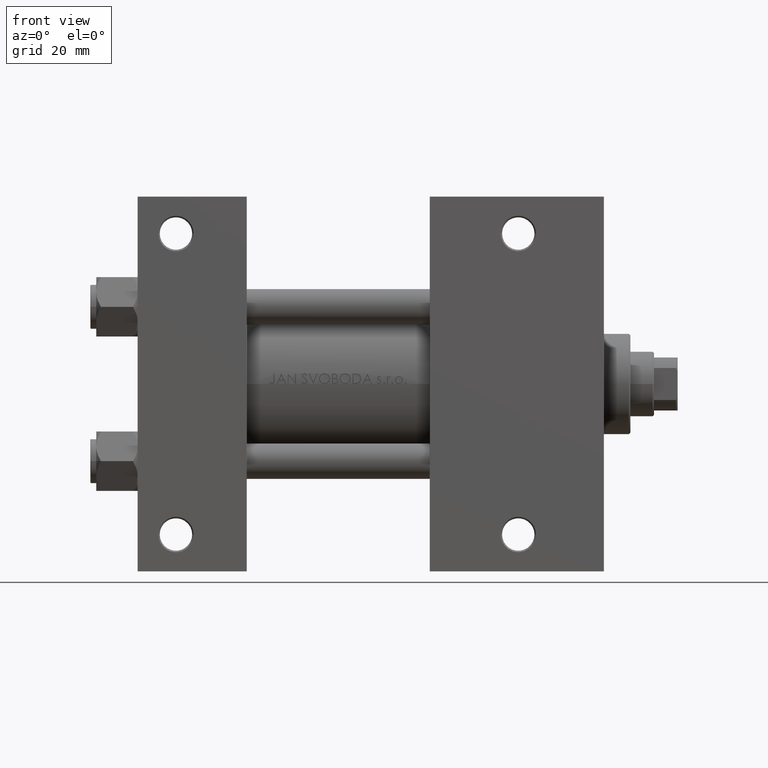
[diagram: clean part render]
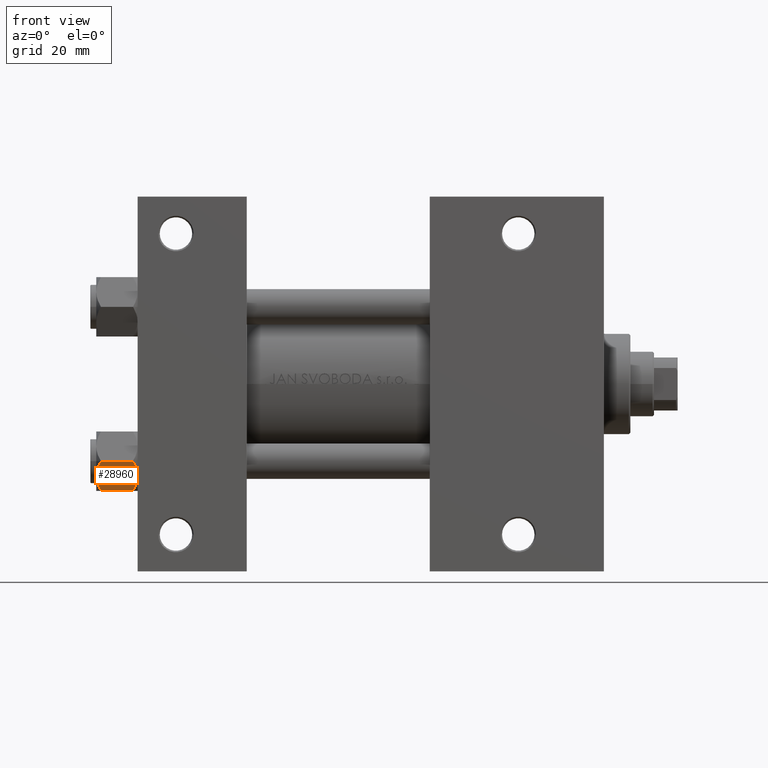
[diagram: same view with one face highlighted and labeled with its STEP entity id]
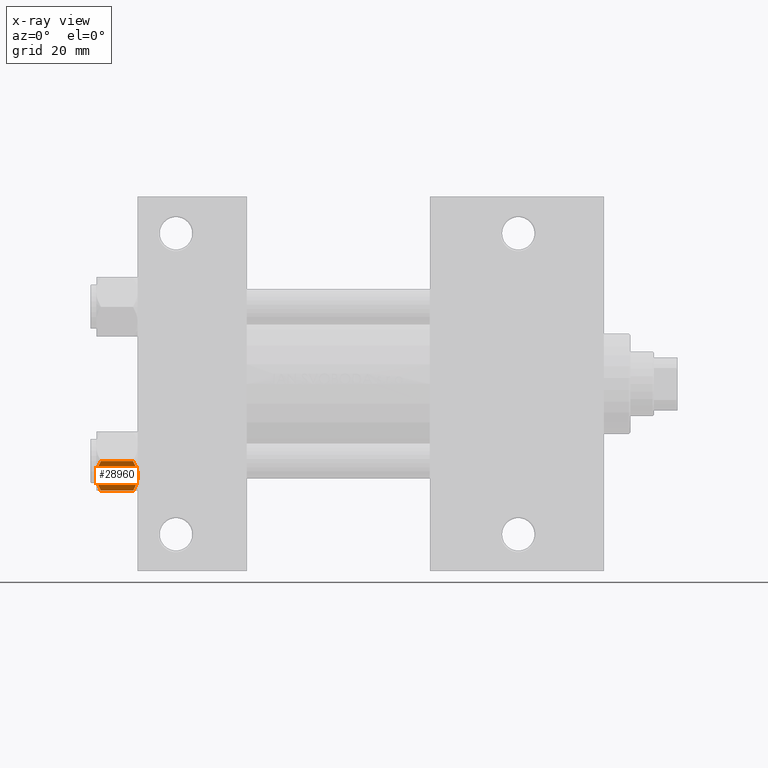
[diagram: x-ray of the same camera — body ghosted, the highlighted face saturated]
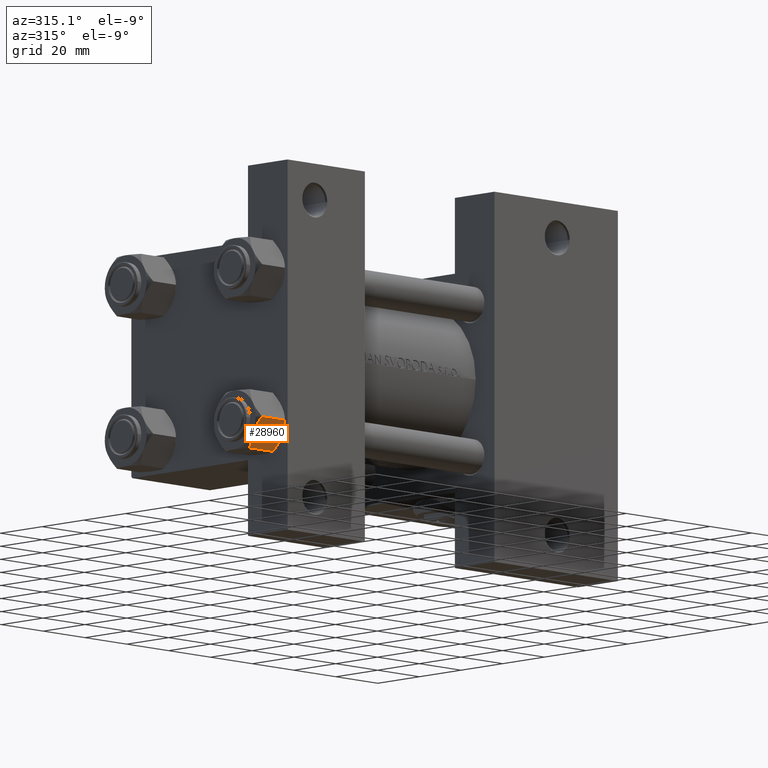
[diagram: same view with one face highlighted and labeled with its STEP entity id]
A machine part, front view. The second image highlights one B-rep face of the part: STEP entity #28960.
The next image is the same camera in x-ray: the body ghosted, the highlighted face saturated — about 0% of this face is hidden behind the body in this view.
A second angle (auxiliary view) of the same face is appended — the face is thin or edge-on in the first view.
In plain terms, the highlighted planar face has unit normal (0, 0.866, 0.5).
Its self-contained STEP definition (entity closure, byte-faithful):
#776 = LINE ( 'NONE', #24192, #40742 ) ;
#1317 = CARTESIAN_POINT ( 'NONE',  ( 8.715000000000001634, -5.031607595987590997, 0.000000000000000000 ) ) ;
#1493 = CARTESIAN_POINT ( 'NONE',  ( 5.810000000000000497, -10.06321519197517667, -12.44321519197518633 ) ) ;
#6033 = CARTESIAN_POINT ( 'NONE',  ( 5.810000000000000497, -10.06321519197517667, -1.556784808024813671 ) ) ;
#6843 = VERTEX_POINT ( 'NONE', #1317 ) ;
#7107 = CARTESIAN_POINT ( 'NONE',  ( 10.69859855102500745, -1.595914123792264050, -13.28585617404753094 ) ) ;
#7986 = FACE_OUTER_BOUND ( 'NONE', #9285, .T. ) ;
#8673 = CARTESIAN_POINT ( 'NONE',  ( 11.62000000000000099, -1.813166800014576593E-15, -14.00000000000000000 ) ) ;
#8681 = B_SPLINE_CURVE_WITH_KNOTS ( 'NONE', 3,
 ( #32995, #25021, #28761, #14055, #40232, #22017 ),
 .UNSPECIFIED., .F., .F.,
 ( 4, 2, 4 ),
 ( 0.006022845781655588975, 0.009013049135303635023, 0.01200325248895167674 ),
 .UNSPECIFIED. ) ;
#9285 = EDGE_LOOP ( 'NONE', ( #15771, #34883, #47062, #26421, #46447, #48904 ) ) ;
#9957 = CARTESIAN_POINT ( 'NONE',  ( 11.62000000000000099, -1.607967606633101042E-15, -1.556784808024815669 ) ) ;
#10354 = CARTESIAN_POINT ( 'NONE',  ( 9.974696630283194310, -2.849749030213795997, -13.69973261901326289 ) ) ;
#11463 = EDGE_CURVE ( 'NONE', #6843, #45953, #26911, .T. ) ;
#11969 = DIRECTION ( 'NONE',  ( -0.8660254037844385966, 0.5000000000000002220, 0.000000000000000000 ) ) ;
#13691 = CARTESIAN_POINT ( 'NONE',  ( 9.220295946303432189, -4.156409344131454020, 1.753358200816401307E-15 ) ) ;
#13768 = CARTESIAN_POINT ( 'NONE',  ( 8.715000000000001634, -5.031607595987590997, 0.000000000000000000 ) ) ;
#14055 = CARTESIAN_POINT ( 'NONE',  ( 6.733375043383497349, -8.463882702393844326, -13.28854452935655139 ) ) ;
#15212 = VERTEX_POINT ( 'NONE', #42254 ) ;
#15771 = ORIENTED_EDGE ( 'NONE', *, *, #21811, .F. ) ;
#16353 = CARTESIAN_POINT ( 'NONE',  ( 11.16445427487471775, -0.7890283410877989567, -12.89876091710046424 ) ) ;
#17431 = CARTESIAN_POINT ( 'NONE',  ( 10.69662495661650503, -1.599332489581334560, -0.7114554706434500497 ) ) ;
#17748 = CARTESIAN_POINT ( 'NONE',  ( 7.455303369716810735, -7.213466161761385109, -0.3002673809867383303 ) ) ;
#17770 = AXIS2_PLACEMENT_3D ( 'NONE', #31156, #11969, #42621 ) ;
#17981 = EDGE_CURVE ( 'NONE', #23201, #29117, #8681, .T. ) ;
#18073 = CARTESIAN_POINT ( 'NONE',  ( 8.715000000000001634, -5.031607595987590997, -14.00000000000000000 ) ) ;
#19676 = PLANE ( 'NONE',  #17770 ) ;
#21699 = VECTOR ( 'NONE', #24115, 1000.000000000000000 ) ;
#21811 = EDGE_CURVE ( 'NONE', #30675, #23201, #34595, .T. ) ;
#22017 = CARTESIAN_POINT ( 'NONE',  ( 5.810000000000000497, -10.06321519197517667, -12.44321519197518633 ) ) ;
#23201 = VERTEX_POINT ( 'NONE', #29247 ) ;
#24115 = DIRECTION ( 'NONE',  ( -0.000000000000000000, -0.000000000000000000, 1.000000000000000000 ) ) ;
#24192 = CARTESIAN_POINT ( 'NONE',  ( 5.810000000000000497, -10.06321519197517667, -14.00000000000000000 ) ) ;
#24973 = CARTESIAN_POINT ( 'NONE',  ( 7.700834831386345058, -6.788193195293096949, -0.1903979688073415555 ) ) ;
#25021 = CARTESIAN_POINT ( 'NONE',  ( 8.209704053696569304, -5.906805847843729751, -14.00000000000000711 ) ) ;
#25219 = CARTESIAN_POINT ( 'NONE',  ( 6.265545725125283738, -9.274186850887380373, -1.101239082899531319 ) ) ;
#25544 = CARTESIAN_POINT ( 'NONE',  ( 9.227666995912104042, -4.143642311704127223, -13.96005881939309212 ) ) ;
#25707 = CARTESIAN_POINT ( 'NONE',  ( 6.731401448974986934, -8.467301068182914392, -0.7141438259524658383 ) ) ;
#26421 = ORIENTED_EDGE ( 'NONE', *, *, #41943, .F. ) ;
#26641 = EDGE_CURVE ( 'NONE', #29117, #15212, #776, .T. ) ;
#26911 = B_SPLINE_CURVE_WITH_KNOTS ( 'NONE', 3,
 ( #45247, #13691, #34036, #17431, #41767, #9957 ),
 .UNSPECIFIED., .F., .F.,
 ( 4, 2, 4 ),
 ( 0.006022845781655586372, 0.009013049135303633289, 0.01200325248895168020 ),
 .UNSPECIFIED. ) ;
#26928 = CARTESIAN_POINT ( 'NONE',  ( 11.62000000000000099, -1.607967606633101042E-15, -1.556784808024815669 ) ) ;
#28302 = CARTESIAN_POINT ( 'NONE',  ( 11.62000000000000099, -1.795242522838921761E-15, -12.44321519197518455 ) ) ;
#28761 = CARTESIAN_POINT ( 'NONE',  ( 7.713000053756304375, -6.767122412062953174, -13.84547602999601601 ) ) ;
#28960 = ADVANCED_FACE ( 'NONE', ( #7986 ), #19676, .F. ) ;
#29117 = VERTEX_POINT ( 'NONE', #1493 ) ;
#29247 = CARTESIAN_POINT ( 'NONE',  ( 8.715000000000001634, -5.031607595987590997, -14.00000000000000000 ) ) ;
#30675 = VERTEX_POINT ( 'NONE', #28302 ) ;
#31156 = CARTESIAN_POINT ( 'NONE',  ( 11.62000000000000099, -1.813166800014576593E-15, -14.00000000000000000 ) ) ;
#32699 = CARTESIAN_POINT ( 'NONE',  ( 8.460569896449618099, -5.472293462311865753, 1.694065894508600678E-15 ) ) ;
#32995 = CARTESIAN_POINT ( 'NONE',  ( 8.715000000000001634, -5.031607595987590997, -14.00000000000000000 ) ) ;
#34036 = CARTESIAN_POINT ( 'NONE',  ( 9.716999946243698005, -3.296092779912227932, -0.1545239700039841013 ) ) ;
#34595 = B_SPLINE_CURVE_WITH_KNOTS ( 'NONE', 3,
 ( #36527, #16353, #7107, #10354, #48956, #25544, #48220, #18073 ),
 .UNSPECIFIED., .F., .F.,
 ( 4, 2, 2, 4 ),
 ( 2.544312114905217906E-07, 0.003011550106433539490, 0.004517197944044564449, 0.006022845781655588975 ),
 .UNSPECIFIED. ) ;
#34883 = ORIENTED_EDGE ( 'NONE', *, *, #42276, .T. ) ;
#36527 = CARTESIAN_POINT ( 'NONE',  ( 11.62000000000000099, -1.795242522838921761E-15, -12.44321519197518455 ) ) ;
#37467 = B_SPLINE_CURVE_WITH_KNOTS ( 'NONE', 3,
 ( #6033, #25219, #25707, #17748, #24973, #48144, #32699, #13768 ),
 .UNSPECIFIED., .F., .F.,
 ( 4, 2, 2, 4 ),
 ( 2.544312114902182352E-07, 0.003011550106433538189, 0.004517197944044561847, 0.006022845781655586372 ),
 .UNSPECIFIED. ) ;
#39896 = DIRECTION ( 'NONE',  ( -0.000000000000000000, -0.000000000000000000, 1.000000000000000000 ) ) ;
#40232 = CARTESIAN_POINT ( 'NONE',  ( 6.265018354709775750, -9.275100283241444643, -12.89823354668504507 ) ) ;
#40742 = VECTOR ( 'NONE', #39896, 1000.000000000000000 ) ;
#41767 = CARTESIAN_POINT ( 'NONE',  ( 11.16498164529022574, -0.7881149087337310233, -1.101766453314954264 ) ) ;
#41943 = EDGE_CURVE ( 'NONE', #15212, #6843, #37467, .T. ) ;
#42254 = CARTESIAN_POINT ( 'NONE',  ( 5.810000000000000497, -10.06321519197517667, -1.556784808024813671 ) ) ;
#42276 = EDGE_CURVE ( 'NONE', #30675, #45953, #46298, .T. ) ;
#42621 = DIRECTION ( 'NONE',  ( -0.5000000000000001110, -0.8660254037844384856, 0.000000000000000000 ) ) ;
#45247 = CARTESIAN_POINT ( 'NONE',  ( 8.715000000000001634, -5.031607595987590997, 0.000000000000000000 ) ) ;
#45953 = VERTEX_POINT ( 'NONE', #26928 ) ;
#46298 = LINE ( 'NONE', #8673, #21699 ) ;
#46447 = ORIENTED_EDGE ( 'NONE', *, *, #26641, .F. ) ;
#47062 = ORIENTED_EDGE ( 'NONE', *, *, #11463, .F. ) ;
#48144 = CARTESIAN_POINT ( 'NONE',  ( 8.202333004087901003, -5.919572880271055659, -0.03994118060690762112 ) ) ;
#48220 = CARTESIAN_POINT ( 'NONE',  ( 8.969430103550385169, -4.590921729663315354, -14.00000000000000533 ) ) ;
#48904 = ORIENTED_EDGE ( 'NONE', *, *, #17981, .F. ) ;
#48956 = CARTESIAN_POINT ( 'NONE',  ( 9.729165168613654657, -3.275021996682085490, -13.80960203119266083 ) ) ;